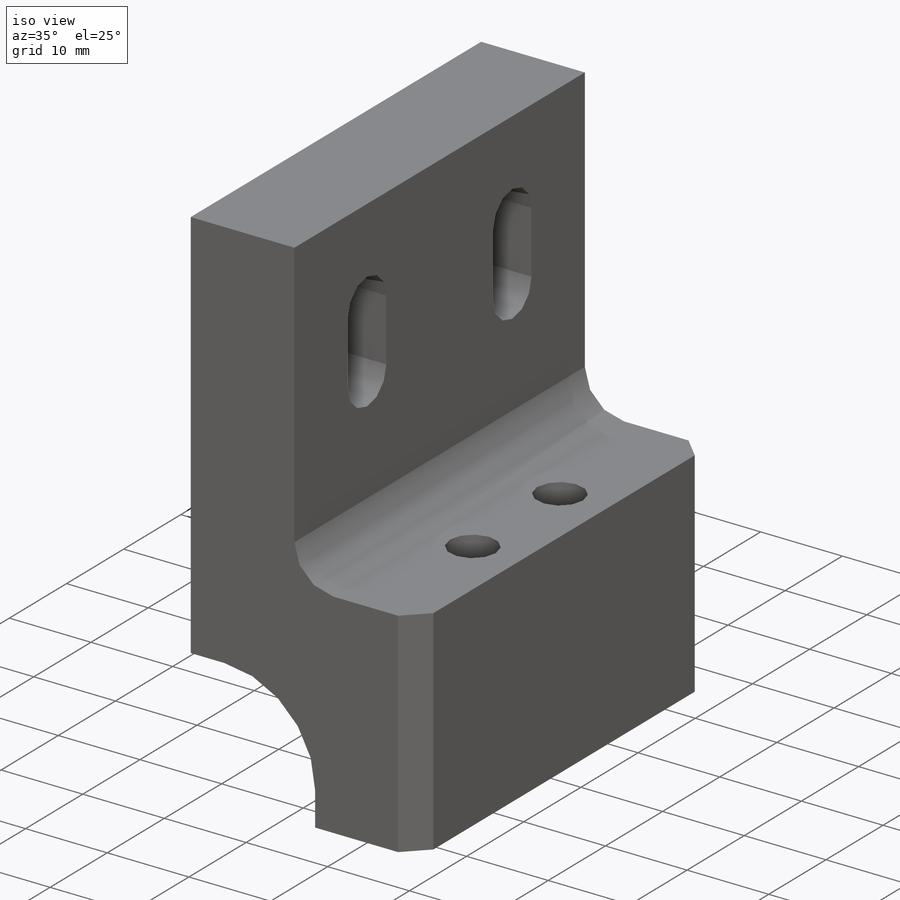
[diagram: iso view]
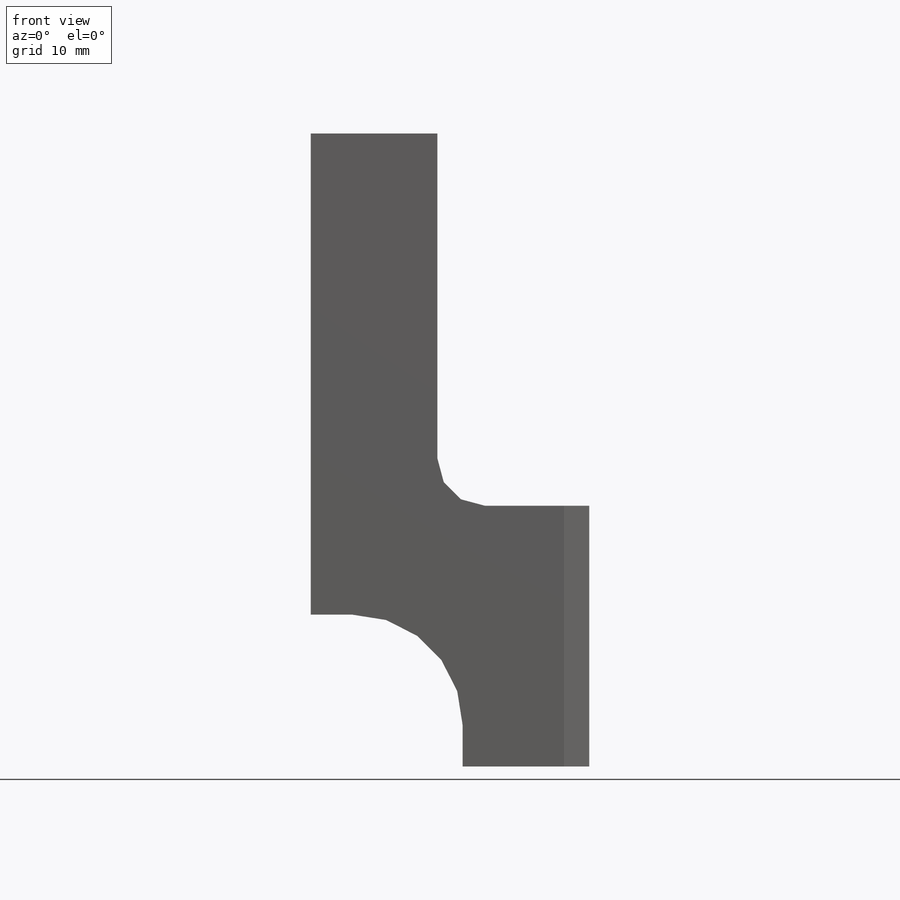
[diagram: front view]
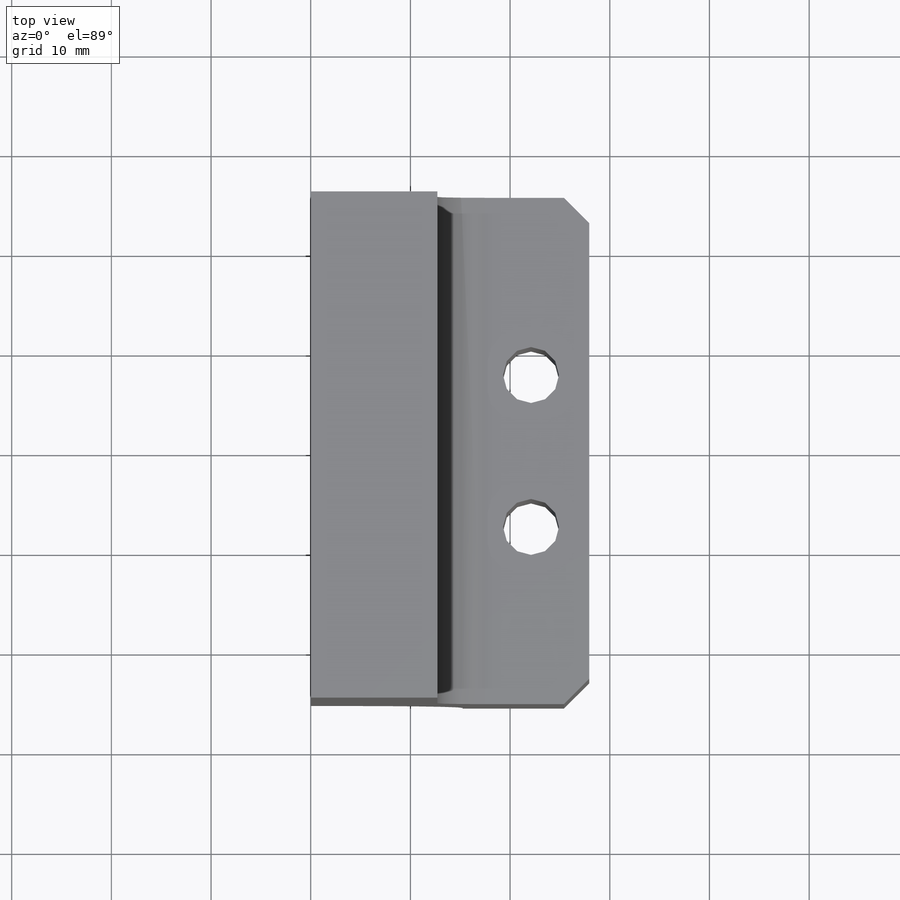
[diagram: top view]
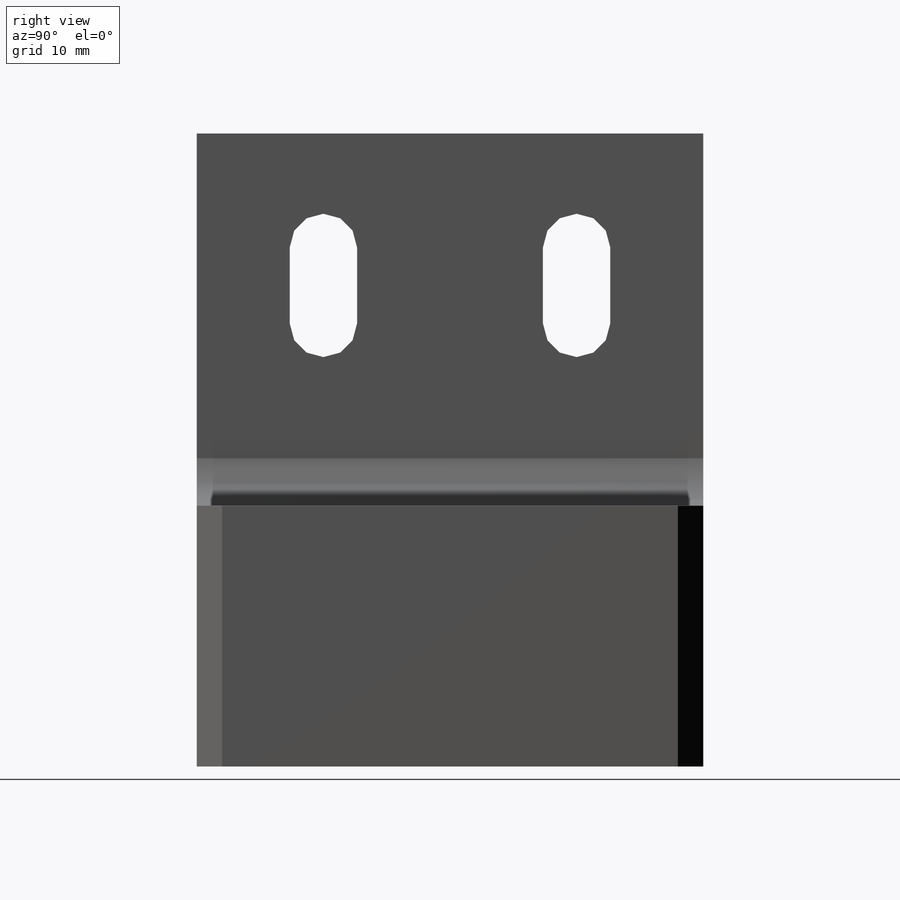
[diagram: right view]
SOLIDWORKS PART (.sldprt)
format: sldprt  version: not decoded by parser v0  size: 335,872 bytes
history: native  units: mm
features: sketch x6, cut_extrude x3, fillet x2, pattern_linear x2, material x1, extrude x1, hole x1, chamfer x1 (+15 scaffold rows collapsed)
feature tree (32):
  scaffold x15  (default folders/planes/origin — collapsed)
  material  "6061 Alloy"
  sketch  "Sketch1"  dims[D1=55.88mm D2=63.5mm]
  extrude  "Extrude1"  Depth=25.4mm
  sketch  "Sketch2"  dims[c1.D1=185.42mm c1.D2=15.24mm c1.D3=92.71mm c2.D1=~12.606063mm c3.D1=90.0deg c4.D1=15.24mm c4.D2=15.24mm]
  cut_extrude  "Extrude2"  [1 undecoded]
  fillet  "Fillet1"  Radius=11.1125mm
  hole  "#10 Clearance Hole1"  Diameter=5.6134mm Depth=63.5mm
  sketch  "Sketch5"  dims[D1=7.62mm D2=22.098mm]
  sketch  "Sketch4"  dims[hole-wizard template sketch: 59 standard entries collapsed; hole parameters kept: c18.Thru Hole Dia.=5.6134mm c18.Thru Hole Depth=63.5mm]
  pattern_linear  "LPattern1"  Count1=2 Count2=1 Spacing1=15.24mm Spacing2=196.596mm
  sketch  "Sketch9"  dims[c1.D1=15.24mm c1.D2=15.24mm c1.D3=39.878mm c2.D1=26.162mm]
  cut_extrude  "Extrude3"  [1 undecoded]
  fillet  "Fillet2"  Radius=4.7625mm
  sketch  "Sketch11"  dims[c1.D3=2.54mm c1.D5=2.54mm c1.D1=13.716mm c1.D2=9.017mm c1.D4=12.7mm c2.D5=10.16mm c2.D1=7.62mm c2.D2=6.7564mm c2.D3=12.7mm]
  cut_extrude  "Extrude5"  [1 undecoded]
  pattern_linear  "LPattern2"  Count1=2 Count2=1 Spacing1=25.4mm Spacing2=2.54mm
  chamfer  "Chamfer1"  Distance=2.54mm Angle=45deg
decode coverage: 13 of 16 modeling features carry decoded parameters
note: ~ marks probable driven/reference dimensions
note: 3 parameter values undecoded
summary: no parameter record found for 3 features
note: suppression state not decoded; provenance and decode notes live in map.json
